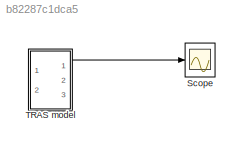
MODEL slx_b82287c1dca5
KIND model
CONFIG AbsTol = auto
CONFIG EnableMultiTasking = off
CONFIG FixedStep = auto
CONFIG MaxStep = auto
CONFIG MinStep = auto
CONFIG RelTol = 1e-3
CONFIG SampleTimeConstraint = Unconstrained
CONFIG SolverName = VariableStepAuto
CONFIG StartTime = 0.0
CONFIG StopTime = 20
BLOCK [Scope] Scope
  Floating = off
  NumInputPorts = 1
  Ports = [1]
  ScopeSpecificationString = Simulink.scopes.TimeScopeBlockCfg('CurrentConfiguration', extmgr.ConfigurationSet(extmgr.Configuration('Core','General UI',true),extmgr.Configuration('Core','Source UI',true),extmgr.Configuration('Sources','WiredSimulink',true,'DataLogging',true,'DataLoggingVariableName','out','DataLoggingSaveFormat','Array'),extmgr.Configuration('Visuals','Time Domain',true,'SerializedDisplays',{struct('MinYLimRe...<+1455ch>
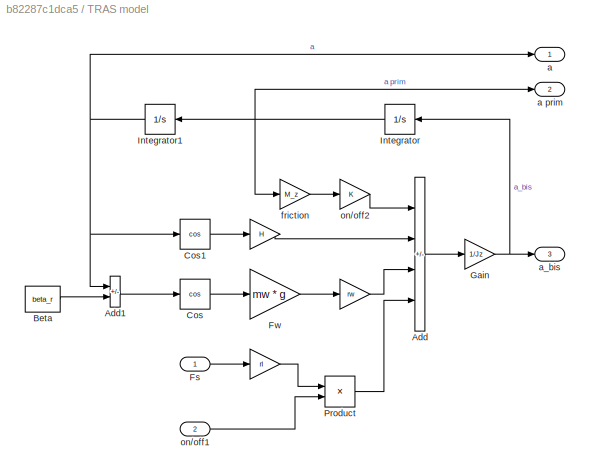
BLOCK [SubSystem] TRAS model
  Ports = [2, 3]
  RequestExecContextInheritance = off
BLOCK [Gain] TRAS model/ 
  Gain = H
BLOCK [Gain] TRAS model/  
  Gain = rw
BLOCK [Gain] TRAS model/   
  Gain = rl
BLOCK [Sum] TRAS model/Add
  IconShape = rectangular
  Inputs = -+--
  Ports = [4, 1]
BLOCK [Sum] TRAS model/Add1
  IconShape = rectangular
  Inputs = -+
  Ports = [2, 1]
BLOCK [Constant] TRAS model/Beta
  Value = beta_r
BLOCK [Trigonometry] TRAS model/Cos
  Operator = cos
  Ports = [1, 1]
BLOCK [Trigonometry] TRAS model/Cos1
  Operator = cos
  Ports = [1, 1]
BLOCK [Inport] TRAS model/Fs
BLOCK [Gain] TRAS model/Fw
  Gain = mw * g
BLOCK [Gain] TRAS model/Gain
  Gain = 1/Jz
BLOCK [Integrator] TRAS model/Integrator
  Ports = [1, 1]
BLOCK [Integrator] TRAS model/Integrator1
  InitialCondition = INITIAL
  Ports = [1, 1]
BLOCK [Product] TRAS model/Product
  Ports = [2, 1]
BLOCK [Outport] TRAS model/a
BLOCK [Outport] TRAS model/a prim
  Port = 2
BLOCK [Outport] TRAS model/a_bis
  Port = 3
BLOCK [Gain] TRAS model/friction
  Gain = M_z
BLOCK [Inport] TRAS model/on//off1
  Port = 2
BLOCK [Gain] TRAS model/on//off2
LINE TRAS model/   :1 -> TRAS model/Product:1
LINE TRAS model/  :1 -> TRAS model/Add:3
LINE TRAS model/ :1 -> TRAS model/Add:2
LINE TRAS model/Add1:1 -> TRAS model/Cos:1
LINE TRAS model/Add:1 -> TRAS model/Gain:1
LINE TRAS model/Beta:1 -> TRAS model/Add1:2
LINE TRAS model/Cos1:1 -> TRAS model/ :1
LINE TRAS model/Cos:1 -> TRAS model/Fw:1
LINE TRAS model/Fs:1 -> TRAS model/   :1
LINE TRAS model/Fw:1 -> TRAS model/  :1
NET TRAS model/Gain:1 -> TRAS model/Integrator:1, TRAS model/a_bis:1
NET TRAS model/Integrator1:1 -> TRAS model/Add1:1, TRAS model/Cos1:1, TRAS model/a:1
NET TRAS model/Integrator:1 -> TRAS model/Integrator1:1, TRAS model/a prim:1, TRAS model/friction:1
LINE TRAS model/Product:1 -> TRAS model/Add:4
LINE TRAS model/friction:1 -> TRAS model/on//off2:1
LINE TRAS model/on//off1:1 -> TRAS model/Product:2
LINE TRAS model/on//off2:1 -> TRAS model/Add:1
LINE TRAS model:1 -> Scope:1
note: NET lines group one-source signal fan-out (src -> all destinations, sorted); 1:1 wires keep LINE
